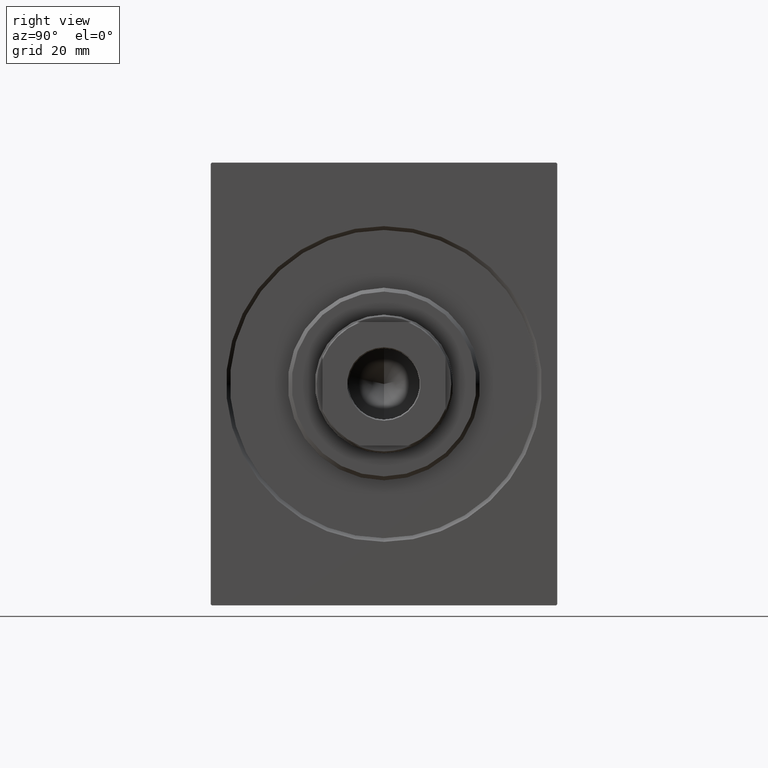
[diagram: clean part render]
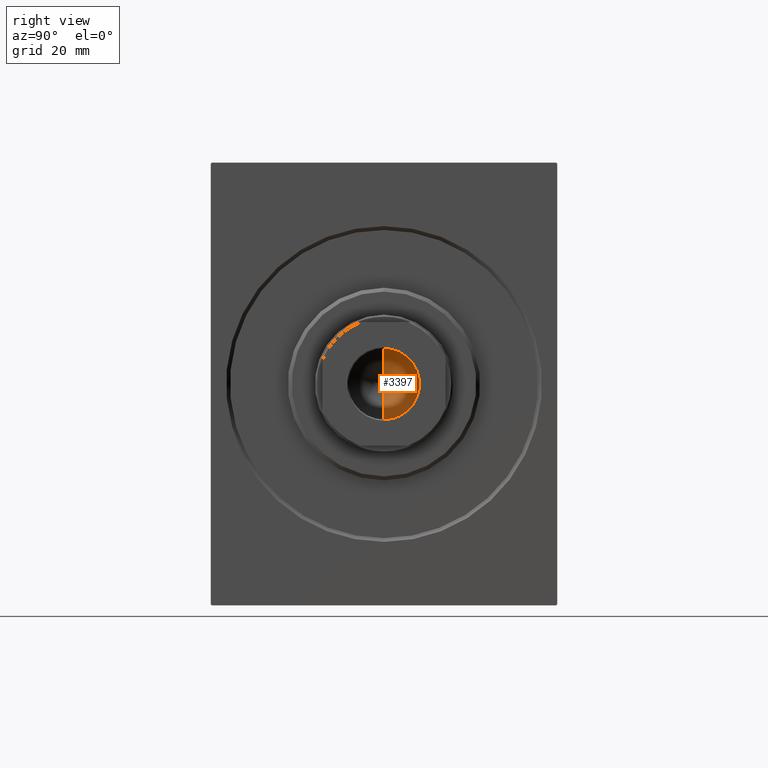
[diagram: same view with one face highlighted and labeled with its STEP entity id]
A machine part, right view. The second image highlights one B-rep face of the part: STEP entity #3397.
In plain terms, the highlighted conical surface has half-angle 59 deg.
Its self-contained STEP definition (entity closure, byte-faithful):
#871 = VECTOR ( 'NONE', #2846, 1000.000000000000000 ) ;
#2846 = DIRECTION ( 'NONE',  ( -0.8571673007021113344, 1.049727191138617463E-16, 0.5150380749100558209 ) ) ;
#3397 = ADVANCED_FACE ( 'NONE', ( #19356 ), #28386, .F. ) ;
#4088 = CARTESIAN_POINT ( 'NONE',  ( -9.249999999999994671, 1.132798289211300909E-15, 79.00000000000001421 ) ) ;
#4789 = ORIENTED_EDGE ( 'NONE', *, *, #29893, .T. ) ;
#8967 = CIRCLE ( 'NONE', #15827, 9.249999999999994671 ) ;
#9114 = EDGE_LOOP ( 'NONE', ( #34311, #4789, #19906 ) ) ;
#9842 = AXIS2_PLACEMENT_3D ( 'NONE', #16135, #35481, #15930 ) ;
#12188 = CARTESIAN_POINT ( 'NONE',  ( 0.000000000000000000, 0.000000000000000000, 79.00000000000001421 ) ) ;
#12321 = LINE ( 'NONE', #38953, #871 ) ;
#15616 = DIRECTION ( 'NONE',  ( 1.000000000000000000, 0.000000000000000000, 0.000000000000000000 ) ) ;
#15827 = AXIS2_PLACEMENT_3D ( 'NONE', #12188, #34547, #15616 ) ;
#15930 = DIRECTION ( 'NONE',  ( 1.000000000000000000, 0.000000000000000000, 0.000000000000000000 ) ) ;
#16135 = CARTESIAN_POINT ( 'NONE',  ( 0.000000000000000000, 0.000000000000000000, 79.00000000000001421 ) ) ;
#19356 = FACE_OUTER_BOUND ( 'NONE', #9114, .T. ) ;
#19906 = ORIENTED_EDGE ( 'NONE', *, *, #41366, .T. ) ;
#21316 = DIRECTION ( 'NONE',  ( 0.8571673007021113344, 0.000000000000000000, 0.5150380749100558209 ) ) ;
#22568 = VECTOR ( 'NONE', #21316, 1000.000000000000000 ) ;
#27549 = CARTESIAN_POINT ( 'NONE',  ( 9.249999999999994671, 0.000000000000000000, 79.00000000000001421 ) ) ;
#28386 = CONICAL_SURFACE ( 'NONE', #9842, 9.249999999999994671, 1.029744258676652535 ) ;
#29095 = VERTEX_POINT ( 'NONE', #38238 ) ;
#29893 = EDGE_CURVE ( 'NONE', #29095, #40145, #40664, .T. ) ;
#32814 = CARTESIAN_POINT ( 'NONE',  ( 9.249999999999994671, 0.000000000000000000, 79.00000000000001421 ) ) ;
#34311 = ORIENTED_EDGE ( 'NONE', *, *, #37254, .F. ) ;
#34547 = DIRECTION ( 'NONE',  ( -0.000000000000000000, -0.000000000000000000, 1.000000000000000000 ) ) ;
#35462 = VERTEX_POINT ( 'NONE', #4088 ) ;
#35481 = DIRECTION ( 'NONE',  ( -0.000000000000000000, -0.000000000000000000, 1.000000000000000000 ) ) ;
#37254 = EDGE_CURVE ( 'NONE', #29095, #35462, #12321, .T. ) ;
#38238 = CARTESIAN_POINT ( 'NONE',  ( -6.793016015247754405E-15, 0.000000000000000000, 73.44203927399506426 ) ) ;
#38953 = CARTESIAN_POINT ( 'NONE',  ( -9.249999999999994671, 1.132798289211300909E-15, 79.00000000000001421 ) ) ;
#40145 = VERTEX_POINT ( 'NONE', #32814 ) ;
#40664 = LINE ( 'NONE', #27549, #22568 ) ;
#41366 = EDGE_CURVE ( 'NONE', #40145, #35462, #8967, .T. ) ;